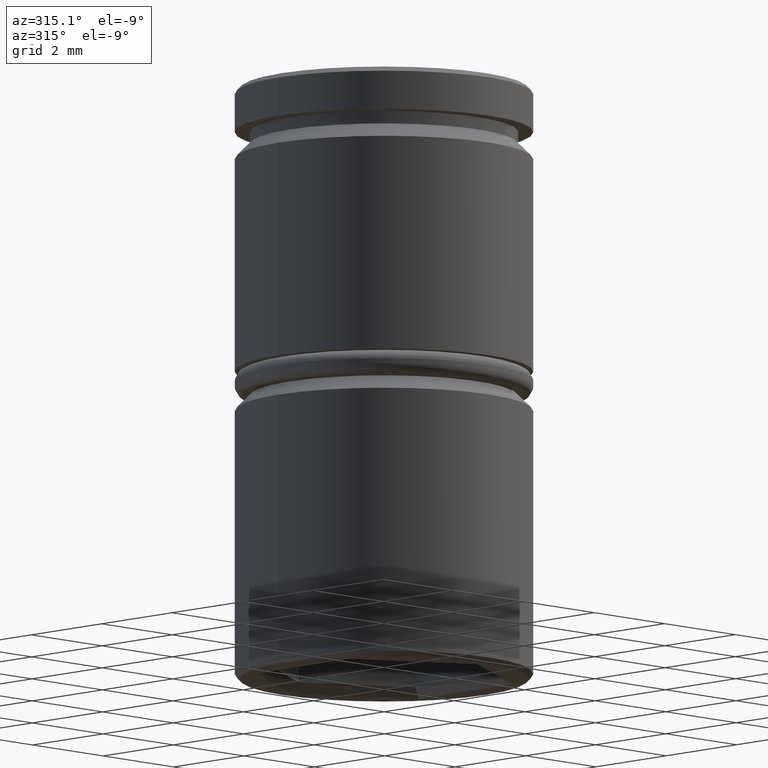
[diagram: clean part render]
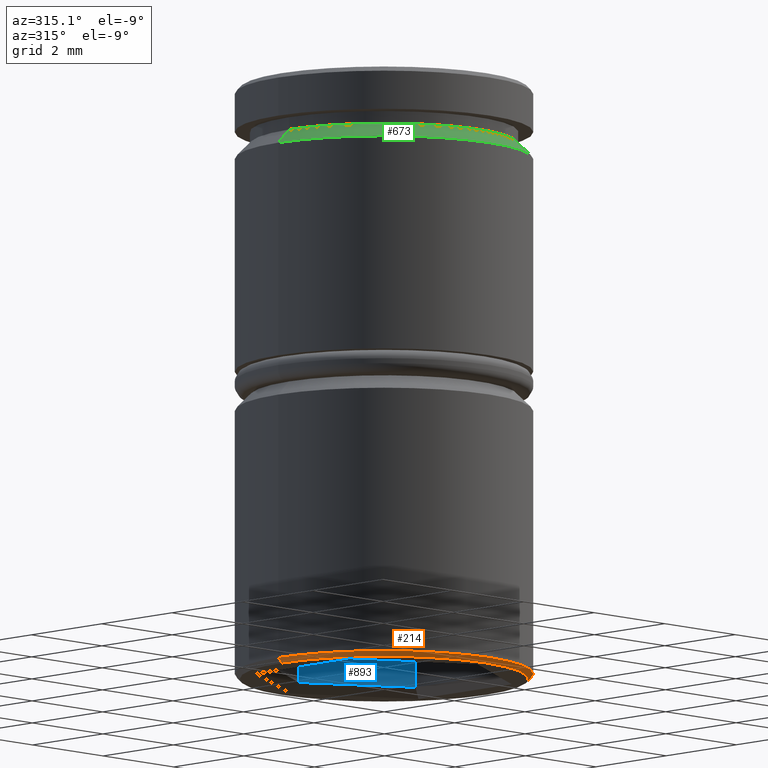
[diagram: same view with three faces highlighted in distinct colors, each labeled with its STEP entity id]
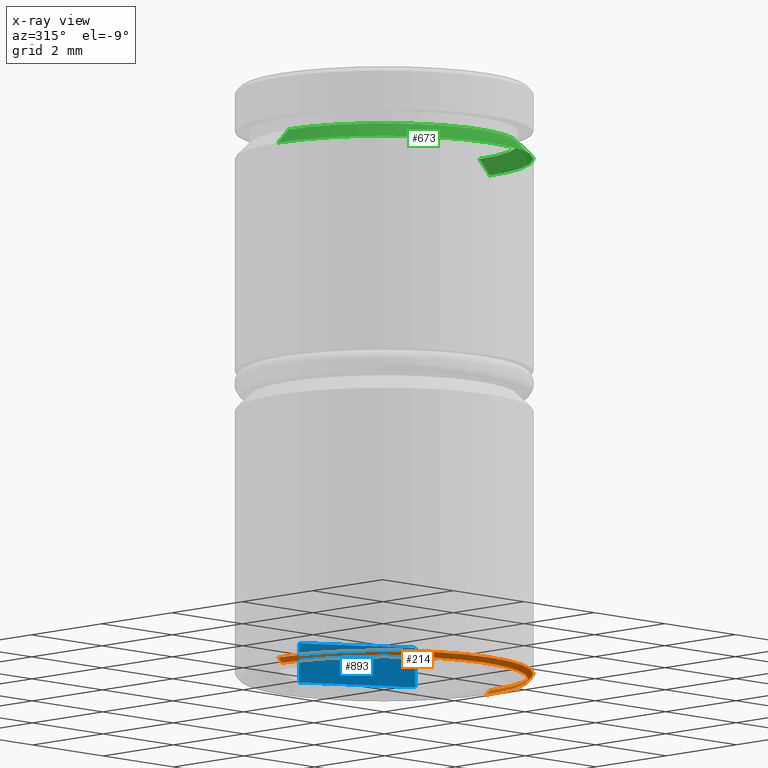
[diagram: x-ray of the same camera — body ghosted, the three highlighted faces saturated]
A machine part, auxiliary view with three faces highlighted in distinct colors.
The next image is the same camera in x-ray (body ghosted, the three faces saturated) — at least one of them is partly hidden behind the body in this view.
Their STEP definitions:

[orange] entity #214 — the highlighted conical surface has half-angle 45 deg.
#39 = CARTESIAN_POINT ( 'NONE',  ( 2.899999999999996803, 0.000000000000000000, -12.00000000000000000 ) ) ;
#67 = AXIS2_PLACEMENT_3D ( 'NONE', #887, #1152, #780 ) ;
#82 = CARTESIAN_POINT ( 'NONE',  ( -3.000000000000000000, 3.673940397442059868E-16, -11.89999999999999503 ) ) ;
#85 = CIRCLE ( 'NONE', #67, 3.000000000000000000 ) ;
#111 = DIRECTION ( 'NONE',  ( 0.000000000000000000, 0.000000000000000000, -1.000000000000000000 ) ) ;
#132 = LINE ( 'NONE', #1128, #892 ) ;
#214 = ADVANCED_FACE ( 'NONE', ( #1009 ), #813, .T. ) ;
#241 = CIRCLE ( 'NONE', #355, 2.899999999999996803 ) ;
#247 = DIRECTION ( 'NONE',  ( -0.000000000000000000, -0.000000000000000000, 1.000000000000000000 ) ) ;
#256 = CARTESIAN_POINT ( 'NONE',  ( -2.899999999999996803, 3.612708057484690125E-16, -12.00000000000000000 ) ) ;
#281 = ORIENTED_EDGE ( 'NONE', *, *, #1049, .F. ) ;
#292 = DIRECTION ( 'NONE',  ( -1.000000000000000000, 0.000000000000000000, 0.000000000000000000 ) ) ;
#353 = EDGE_CURVE ( 'NONE', #865, #634, #85, .T. ) ;
#355 = AXIS2_PLACEMENT_3D ( 'NONE', #1109, #111, #292 ) ;
#421 = ORIENTED_EDGE ( 'NONE', *, *, #353, .F. ) ;
#494 = ORIENTED_EDGE ( 'NONE', *, *, #707, .T. ) ;
#537 = LINE ( 'NONE', #82, #755 ) ;
#599 = DIRECTION ( 'NONE',  ( 0.7071067811865430208, 0.000000000000000000, 0.7071067811865521247 ) ) ;
#618 = CARTESIAN_POINT ( 'NONE',  ( -3.000000000000000000, 3.673940397442059868E-16, -11.89999999999999503 ) ) ;
#624 = AXIS2_PLACEMENT_3D ( 'NONE', #706, #247, #1014 ) ;
#634 = VERTEX_POINT ( 'NONE', #677 ) ;
#647 = EDGE_LOOP ( 'NONE', ( #886, #281, #494, #421 ) ) ;
#677 = CARTESIAN_POINT ( 'NONE',  ( 3.000000000000000000, 0.000000000000000000, -11.89999999999999503 ) ) ;
#706 = CARTESIAN_POINT ( 'NONE',  ( 0.000000000000000000, 0.000000000000000000, -11.89999999999999503 ) ) ;
#707 = EDGE_CURVE ( 'NONE', #774, #634, #132, .T. ) ;
#755 = VECTOR ( 'NONE', #994, 999.9999999999998863 ) ;
#774 = VERTEX_POINT ( 'NONE', #39 ) ;
#780 = DIRECTION ( 'NONE',  ( -1.000000000000000000, 0.000000000000000000, 0.000000000000000000 ) ) ;
#813 = CONICAL_SURFACE ( 'NONE', #624, 3.000000000000000000, 0.7853981633974418397 ) ;
#865 = VERTEX_POINT ( 'NONE', #618 ) ;
#886 = ORIENTED_EDGE ( 'NONE', *, *, #928, .F. ) ;
#887 = CARTESIAN_POINT ( 'NONE',  ( 0.000000000000000000, 0.000000000000000000, -11.89999999999999503 ) ) ;
#892 = VECTOR ( 'NONE', #599, 999.9999999999998863 ) ;
#926 = VERTEX_POINT ( 'NONE', #256 ) ;
#928 = EDGE_CURVE ( 'NONE', #926, #865, #537, .T. ) ;
#994 = DIRECTION ( 'NONE',  ( -0.7071067811865430208, 8.659560562354877391E-17, 0.7071067811865521247 ) ) ;
#1009 = FACE_OUTER_BOUND ( 'NONE', #647, .T. ) ;
#1014 = DIRECTION ( 'NONE',  ( 1.000000000000000000, 0.000000000000000000, 0.000000000000000000 ) ) ;
#1049 = EDGE_CURVE ( 'NONE', #774, #926, #241, .T. ) ;
#1109 = CARTESIAN_POINT ( 'NONE',  ( 0.000000000000000000, 0.000000000000000000, -12.00000000000000000 ) ) ;
#1128 = CARTESIAN_POINT ( 'NONE',  ( 3.000000000000000000, 0.000000000000000000, -11.89999999999999503 ) ) ;
#1152 = DIRECTION ( 'NONE',  ( -0.000000000000000000, -0.000000000000000000, 1.000000000000000000 ) ) ;

[blue] entity #893 — the highlighted planar face has unit normal (0.5, 0.866, -0).
#2 = DIRECTION ( 'NONE',  ( 0.8660254037844385966, -0.4999999999999999445, 0.000000000000000000 ) ) ;
#38 = ORIENTED_EDGE ( 'NONE', *, *, #763, .T. ) ;
#52 = VERTEX_POINT ( 'NONE', #598 ) ;
#174 = LINE ( 'NONE', #542, #240 ) ;
#187 = VERTEX_POINT ( 'NONE', #543 ) ;
#199 = CARTESIAN_POINT ( 'NONE',  ( 2.099999999999996980, 1.212435565298211504, -11.00000000000000000 ) ) ;
#228 = VERTEX_POINT ( 'NONE', #551 ) ;
#231 = VERTEX_POINT ( 'NONE', #888 ) ;
#240 = VECTOR ( 'NONE', #702, 1000.000000000000114 ) ;
#249 = CARTESIAN_POINT ( 'NONE',  ( 0.000000000000000000, 2.424871130596423896, -11.00000000000000000 ) ) ;
#268 = ORIENTED_EDGE ( 'NONE', *, *, #1025, .F. ) ;
#269 = DIRECTION ( 'NONE',  ( -0.000000000000000000, -0.000000000000000000, -1.000000000000000000 ) ) ;
#335 = VECTOR ( 'NONE', #269, 1000.000000000000000 ) ;
#357 = LINE ( 'NONE', #249, #663 ) ;
#542 = CARTESIAN_POINT ( 'NONE',  ( 2.099999999999996980, 1.212435565298211726, -11.79999999999999893 ) ) ;
#543 = CARTESIAN_POINT ( 'NONE',  ( 2.099999999999996980, 1.212435565298211504, -11.79999999999999893 ) ) ;
#551 = CARTESIAN_POINT ( 'NONE',  ( 0.000000000000000000, 2.424871130596423896, -11.79999999999999893 ) ) ;
#598 = CARTESIAN_POINT ( 'NONE',  ( 0.000000000000000000, 2.424871130596423896, -11.00000000000000000 ) ) ;
#630 = FACE_OUTER_BOUND ( 'NONE', #787, .T. ) ;
#663 = VECTOR ( 'NONE', #2, 1000.000000000000114 ) ;
#690 = LINE ( 'NONE', #863, #1096 ) ;
#702 = DIRECTION ( 'NONE',  ( 0.8660254037844385966, -0.4999999999999999445, 0.000000000000000000 ) ) ;
#718 = DIRECTION ( 'NONE',  ( -0.8660254037844385966, 0.4999999999999999445, 0.000000000000000000 ) ) ;
#741 = ORIENTED_EDGE ( 'NONE', *, *, #853, .F. ) ;
#763 = EDGE_CURVE ( 'NONE', #52, #228, #690, .T. ) ;
#777 = DIRECTION ( 'NONE',  ( -0.000000000000000000, -0.000000000000000000, -1.000000000000000000 ) ) ;
#787 = EDGE_LOOP ( 'NONE', ( #38, #844, #268, #741 ) ) ;
#803 = CARTESIAN_POINT ( 'NONE',  ( 0.000000000000000000, 2.424871130596423896, -11.00000000000000000 ) ) ;
#844 = ORIENTED_EDGE ( 'NONE', *, *, #930, .T. ) ;
#853 = EDGE_CURVE ( 'NONE', #52, #231, #357, .T. ) ;
#863 = CARTESIAN_POINT ( 'NONE',  ( 0.000000000000000000, 2.424871130596423896, -11.00000000000000000 ) ) ;
#888 = CARTESIAN_POINT ( 'NONE',  ( 2.099999999999996980, 1.212435565298211504, -11.00000000000000000 ) ) ;
#893 = ADVANCED_FACE ( 'NONE', ( #630 ), #899, .F. ) ;
#899 = PLANE ( 'NONE',  #1004 ) ;
#907 = DIRECTION ( 'NONE',  ( 0.5000000000000000000, 0.8660254037844387076, -0.000000000000000000 ) ) ;
#930 = EDGE_CURVE ( 'NONE', #228, #187, #174, .T. ) ;
#1004 = AXIS2_PLACEMENT_3D ( 'NONE', #803, #907, #718 ) ;
#1017 = LINE ( 'NONE', #199, #335 ) ;
#1025 = EDGE_CURVE ( 'NONE', #231, #187, #1017, .T. ) ;
#1096 = VECTOR ( 'NONE', #777, 1000.000000000000000 ) ;

[green] entity #673 — the highlighted conical surface has half-angle 45 deg.
#19 = ORIENTED_EDGE ( 'NONE', *, *, #632, .F. ) ;
#25 = AXIS2_PLACEMENT_3D ( 'NONE', #1131, #64, #966 ) ;
#34 = ORIENTED_EDGE ( 'NONE', *, *, #288, .F. ) ;
#47 = CIRCLE ( 'NONE', #794, 2.700000000000000178 ) ;
#64 = DIRECTION ( 'NONE',  ( 0.000000000000000000, 0.000000000000000000, -1.000000000000000000 ) ) ;
#78 = CARTESIAN_POINT ( 'NONE',  ( 3.000000000000000000, 0.000000000000000000, -1.424999999999995381 ) ) ;
#106 = LINE ( 'NONE', #476, #1001 ) ;
#195 = DIRECTION ( 'NONE',  ( 0.000000000000000000, 0.000000000000000000, -1.000000000000000000 ) ) ;
#208 = CARTESIAN_POINT ( 'NONE',  ( -2.700000000000005063, 0.000000000000000000, -1.125000000000000222 ) ) ;
#288 = EDGE_CURVE ( 'NONE', #455, #999, #968, .T. ) ;
#383 = DIRECTION ( 'NONE',  ( -1.000000000000000000, 0.000000000000000000, 0.000000000000000000 ) ) ;
#399 = EDGE_CURVE ( 'NONE', #1048, #779, #47, .T. ) ;
#403 = CARTESIAN_POINT ( 'NONE',  ( 2.700000000000000178, 0.000000000000000000, -1.125000000000000222 ) ) ;
#412 = AXIS2_PLACEMENT_3D ( 'NONE', #1015, #195, #383 ) ;
#455 = VERTEX_POINT ( 'NONE', #78 ) ;
#474 = CARTESIAN_POINT ( 'NONE',  ( -3.000000000000000000, 3.673940397442059868E-16, -1.424999999999995381 ) ) ;
#476 = CARTESIAN_POINT ( 'NONE',  ( 2.700000000000005063, 3.306546357697859650E-16, -1.125000000000000222 ) ) ;
#552 = DIRECTION ( 'NONE',  ( 1.000000000000000000, 0.000000000000000000, 0.000000000000000000 ) ) ;
#569 = EDGE_CURVE ( 'NONE', #1048, #999, #1122, .T. ) ;
#588 = DIRECTION ( 'NONE',  ( 0.7071067811865474617, 8.659560562354932858E-17, -0.7071067811865474617 ) ) ;
#626 = CONICAL_SURFACE ( 'NONE', #412, 2.700000000000005063, 0.7853981633974482790 ) ;
#632 = EDGE_CURVE ( 'NONE', #779, #455, #106, .T. ) ;
#642 = DIRECTION ( 'NONE',  ( -0.000000000000000000, -0.000000000000000000, 1.000000000000000000 ) ) ;
#645 = VECTOR ( 'NONE', #654, 1000.000000000000114 ) ;
#654 = DIRECTION ( 'NONE',  ( -0.7071067811865474617, 0.000000000000000000, -0.7071067811865474617 ) ) ;
#669 = EDGE_LOOP ( 'NONE', ( #19, #1100, #1056, #34 ) ) ;
#673 = ADVANCED_FACE ( 'NONE', ( #744 ), #626, .T. ) ;
#735 = CARTESIAN_POINT ( 'NONE',  ( 0.000000000000000000, 0.000000000000000000, -1.125000000000000222 ) ) ;
#744 = FACE_OUTER_BOUND ( 'NONE', #669, .T. ) ;
#749 = CARTESIAN_POINT ( 'NONE',  ( -2.700000000000000178, 3.306546357697853733E-16, -1.125000000000000222 ) ) ;
#779 = VERTEX_POINT ( 'NONE', #403 ) ;
#794 = AXIS2_PLACEMENT_3D ( 'NONE', #735, #642, #552 ) ;
#966 = DIRECTION ( 'NONE',  ( 1.000000000000000000, 0.000000000000000000, 0.000000000000000000 ) ) ;
#968 = CIRCLE ( 'NONE', #25, 3.000000000000000000 ) ;
#999 = VERTEX_POINT ( 'NONE', #474 ) ;
#1001 = VECTOR ( 'NONE', #588, 1000.000000000000114 ) ;
#1015 = CARTESIAN_POINT ( 'NONE',  ( 0.000000000000000000, 0.000000000000000000, -1.125000000000000222 ) ) ;
#1048 = VERTEX_POINT ( 'NONE', #749 ) ;
#1056 = ORIENTED_EDGE ( 'NONE', *, *, #569, .T. ) ;
#1100 = ORIENTED_EDGE ( 'NONE', *, *, #399, .F. ) ;
#1122 = LINE ( 'NONE', #208, #645 ) ;
#1131 = CARTESIAN_POINT ( 'NONE',  ( 0.000000000000000000, 0.000000000000000000, -1.424999999999995381 ) ) ;